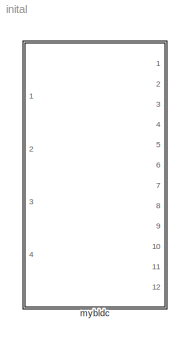
MODEL inital
KIND model
CONFIG AbsTol = auto
CONFIG FixedStep = auto
CONFIG MaxStep = auto
CONFIG MinStep = auto
CONFIG RelTol = 1e-3
CONFIG Solver = ode45
CONFIG SolverMode = Auto
CONFIG StartTime = 0.0
CONFIG StopTime = 10.0
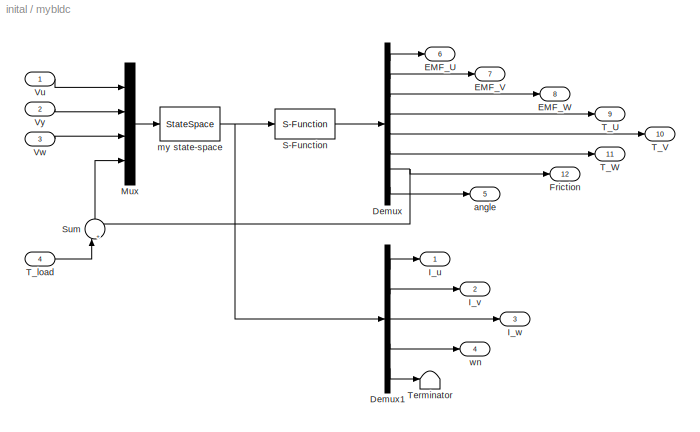
BLOCK [SubSystem] mybldc
  MaskIconFrame = on
  MaskIconOpaque = on
  MaskIconRotate = none
  MaskIconUnits = autoscale
  Ports = [4, 12]
  RTWFcnNameOpts = Auto
  RTWFileNameOpts = Auto
  RTWSystemCode = Auto
  ShowPortLabels = on
  TreatAsAtomicUnit = off
BLOCK [Demux] mybldc/Demux
  BusSelectionMode = off
  Outputs = 8
  Ports = [1, 8]
BLOCK [Demux] mybldc/Demux1
  BusSelectionMode = off
  Outputs = 5
  Ports = [1, 5]
BLOCK [Outport] mybldc/EMF_U
  InitialOutput = []
  OutputWhenDisabled = held
  Port = 6
BLOCK [Outport] mybldc/EMF_V
  InitialOutput = []
  OutputWhenDisabled = held
  Port = 7
BLOCK [Outport] mybldc/EMF_W
  InitialOutput = []
  OutputWhenDisabled = held
  Port = 8
BLOCK [Outport] mybldc/Friction
  InitialOutput = []
  OutputWhenDisabled = held
  Port = 12
BLOCK [Outport] mybldc/I_u
  InitialOutput = []
  OutputWhenDisabled = held
  Port = 1
BLOCK [Outport] mybldc/I_v
  InitialOutput = []
  OutputWhenDisabled = held
  Port = 2
BLOCK [Outport] mybldc/I_w
  InitialOutput = []
  OutputWhenDisabled = held
  Port = 3
BLOCK [Mux] mybldc/Mux
  DisplayOption = bar
  Inputs = 4
  Ports = [4, 1]
BLOCK [S-Function] mybldc/S-Function
  FunctionName = MYBLDC2
  MaskCallbackString = |||||||||||
  MaskEnableString = on,on,on,on,on,on,on,on,on,on,on,on
  MaskIconFrame = on
  MaskIconOpaque = on
  MaskIconRotate = none
  MaskIconUnits = autoscale
  MaskPromptString = Number of turns per phase|Resistance per phase|self inductance per phase|mutual inductace per phase|Maximum value of flux density|Rotor length|rotor radius|value of viscous friction|moment of inertia|Total number of poles|starting value of coulomb friction|Static friction
  MaskStyleString = edit,edit,edit,edit,edit,edit,edit,edit,edit,edit,edit,edit
  MaskToolTipString = on,on,on,on,on,on,on,on,on,on,on,on
  MaskTunableValueString = on,on,on,on,on,on,on,on,on,on,on,on
  MaskValueString = 100|0.7|2.72e-3|-1.5e-3|49/60|0.03|0.02|0.002|0.0002|4|0.2*0.089|0.089
  MaskVariableAliases = ,,,,,,,,,,,
  MaskVariables = N=@1;R=@2;L=@3;M=@4;BM=@5;Rl=@6;Rr=@7;DF=@8;J=@9;P=@10;Fs=@11;F0=@12;
  MaskVisibilityString = on,on,on,on,on,on,on,on,on,on,on,on
  Parameters = N,R,L,M,BM,Rl,Rr,DF,J,P,F0,Fs
  PortCounts = []
  Ports = [1, 1]
  SFunctionModules = ''
BLOCK [Sum] mybldc/Sum
  IconShape = round
  Inputs = |++
  Ports = [2, 1]
  SaturateOnIntegerOverflow = on
BLOCK [Outport] mybldc/T_U
  InitialOutput = []
  OutputWhenDisabled = held
  Port = 9
BLOCK [Outport] mybldc/T_V
  InitialOutput = []
  OutputWhenDisabled = held
  Port = 10
BLOCK [Outport] mybldc/T_W
  InitialOutput = []
  OutputWhenDisabled = held
  Port = 11
BLOCK [Inport] mybldc/T_load
  Interpolate = on
  Port = 4
BLOCK [Terminator] mybldc/Terminator
BLOCK [Inport] mybldc/Vu
  Interpolate = on
  Port = 1
BLOCK [Inport] mybldc/Vw
  Interpolate = on
  Port = 3
BLOCK [Inport] mybldc/Vy
  Interpolate = on
  Port = 2
BLOCK [Outport] mybldc/angle
  InitialOutput = []
  OutputWhenDisabled = held
  Port = 5
BLOCK [StateSpace] mybldc/my state-space
  A = [ -1.658768e+002  0 0 0 0; 0  -1.658768e+002 0 1.161137e+001 0; 0  0 -1.658768e+002 -1.161137e+001 0; 0  -245 245 -10 0; 0  0 0 2 0]
  AbsoluteTolerance = auto
  B = [236.96 0 0 0; 0 236.96 0 0; 0 0 236.96 0; 0 0 0 -5000; 0 0 0 0]
  C = [1 0 0 0 0;0 1 0 0 0;0 0 1 0 0; 0 0 0 1 0;0 0 0 0 1]
  D = [0 0 0 0 ; 0 0 0 0; 0 0 0 0; 0 0 0 0; 0 0 0 0]
  Realization = auto
  X0 = [0 0 0 0 0]
BLOCK [Outport] mybldc/wn
  InitialOutput = []
  OutputWhenDisabled = held
  Port = 4
LINE mybldc/Demux1:1 -> mybldc/I_u:1
LINE mybldc/Demux1:2 -> mybldc/I_v:1
LINE mybldc/Demux1:3 -> mybldc/I_w:1
LINE mybldc/Demux1:4 -> mybldc/wn:1
LINE mybldc/Demux1:5 -> mybldc/Terminator:1
LINE mybldc/Demux:1 -> mybldc/EMF_U:1
LINE mybldc/Demux:2 -> mybldc/EMF_V:1
LINE mybldc/Demux:3 -> mybldc/EMF_W:1
LINE mybldc/Demux:4 -> mybldc/T_U:1
LINE mybldc/Demux:5 -> mybldc/T_V:1
LINE mybldc/Demux:6 -> mybldc/T_W:1
NET mybldc/Demux:7 -> mybldc/Friction:1, mybldc/Sum:2
LINE mybldc/Demux:8 -> mybldc/angle:1
LINE mybldc/Mux:1 -> mybldc/my state-space:1
LINE mybldc/S-Function:1 -> mybldc/Demux:1
LINE mybldc/Sum:1 -> mybldc/Mux:4
LINE mybldc/T_load:1 -> mybldc/Sum:1
LINE mybldc/Vu:1 -> mybldc/Mux:1
LINE mybldc/Vw:1 -> mybldc/Mux:3
LINE mybldc/Vy:1 -> mybldc/Mux:2
NET mybldc/my state-space:1 -> mybldc/Demux1:1, mybldc/S-Function:1
note: NET lines group one-source signal fan-out (src -> all destinations, sorted); 1:1 wires keep LINE
